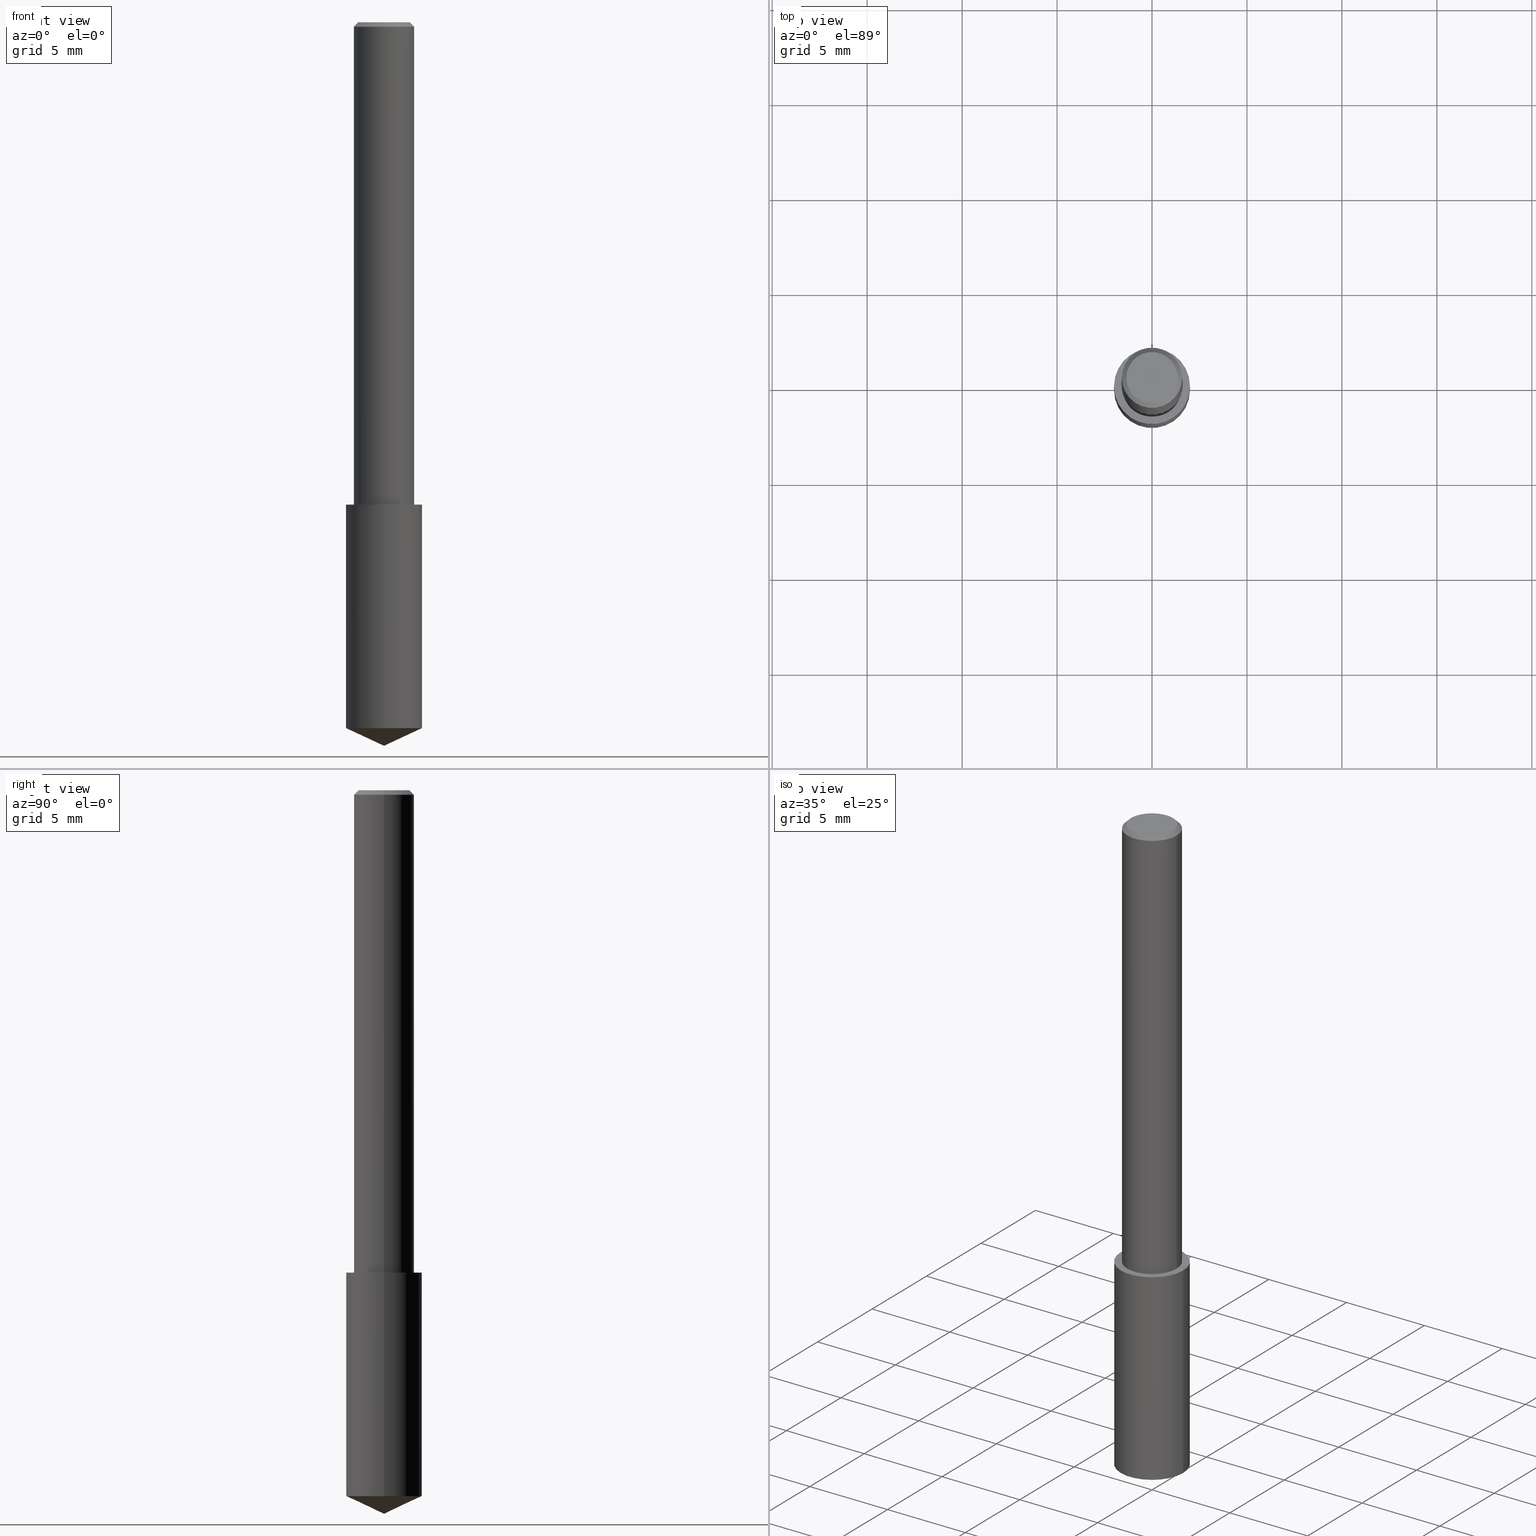
[diagram: canonical four-view strip — front | top / right | iso, engineering-drawing reading convention]
A machine part, canonical four-view strip (front | top / right | iso — engineering-drawing reading convention). The complete STEP part file that produces these views, byte-faithful:
ISO-10303-21;
HEADER;
FILE_DESCRIPTION (( 'STEP AP203' ),
    '1' );
FILE_NAME ('06096.STEP',
    '2024-04-30T18:20:17',
    ( '' ),
    ( '' ),
    'SwSTEP 2.0',
    'SolidWorks 2023',
    '' );
FILE_SCHEMA (( 'CONFIG_CONTROL_DESIGN' ));
ENDSEC;

DATA;
#1 = AXIS2_PLACEMENT_3D ( 'NONE', #338, #98, #74 ) ;
#2 = PERSON_AND_ORGANIZATION_ROLE ( 'design_owner' ) ;
#3 = PRODUCT ( '06096', '06096', '', ( #337 ) ) ;
#4 = PERSON_AND_ORGANIZATION ( #123, #295 ) ;
#5 = LOCAL_TIME ( 14, 20, 17.00000000000000000, #169 ) ;
#6 = EDGE_LOOP ( 'NONE', ( #224, #322, #241, #325 ) ) ;
#7 = VECTOR ( 'NONE', #83, 39.37007874015748854 ) ;
#8 = VERTEX_POINT ( 'NONE', #154 ) ;
#9 = VERTEX_POINT ( 'NONE', #44 ) ;
#10 = ADVANCED_FACE ( 'NONE', ( #247 ), #45, .T. ) ;
#11 = FACE_OUTER_BOUND ( 'NONE', #41, .T. ) ;
#12 = ORIENTED_EDGE ( 'NONE', *, *, #278, .F. ) ;
#13 = EDGE_CURVE ( 'NONE', #220, #223, #297, .T. ) ;
#14 = CARTESIAN_POINT ( 'NONE',  ( -0.07875000000000000056, -3.740692654982671056E-15, -1.000000000000000222 ) ) ;
#15 = LOCAL_TIME ( 14, 20, 17.00000000000000000, #105 ) ;
#16 = DIRECTION ( 'NONE',  ( -2.445468806185136597E-29, 3.491481338843145583E-15, 1.000000000000000000 ) ) ;
#17 = DIRECTION ( 'NONE',  ( 1.000000000000000000, 0.000000000000000000, 0.000000000000000000 ) ) ;
#18 = AXIS2_PLACEMENT_3D ( 'NONE', #248, #155, #335 ) ;
#19 = CARTESIAN_POINT ( 'NONE',  ( 2.292627005798582375E-31, -3.273263755165472650E-17, -0.009375000000000067307 ) ) ;
#20 = CARTESIAN_POINT ( 'NONE',  ( -7.487088864773345706E-50, 1.068957861474247695E-35, 3.061616997868395197E-21 ) ) ;
#21 = CARTESIAN_POINT ( 'NONE',  ( -9.261009624683002666E-28, 1.322226732217803884E-13, 37.87007874015748143 ) ) ;
#22 =( NAMED_UNIT ( * ) SI_UNIT ( $, .STERADIAN. ) SOLID_ANGLE_UNIT ( ) );
#23 = ADVANCED_FACE ( 'NONE', ( #11 ), #137, .T. ) ;
#24 = AXIS2_PLACEMENT_3D ( 'NONE', #138, #290, #17 ) ;
#25 = CARTESIAN_POINT ( 'NONE',  ( 0.000000000000000000, 0.000000000000000000, 0.000000000000000000 ) ) ;
#26 = CARTESIAN_POINT ( 'NONE',  ( 0.06250000000000012490, -3.927916506198539224E-15, -1.000000000000000222 ) ) ;
#27 = AXIS2_PLACEMENT_3D ( 'NONE', #81, #192, #46 ) ;
#28 = APPROVAL_ROLE ( '' ) ;
#29 = CARTESIAN_POINT ( 'NONE',  ( 2.445468806185137438E-29, -3.491481338843146371E-15, -1.000000000000000222 ) ) ;
#30 = DIRECTION ( 'NONE',  ( -1.000000000000000000, 6.982962677686266711E-15, 0.000000000000000000 ) ) ;
#31 = EDGE_CURVE ( 'NONE', #9, #150, #116, .T. ) ;
#32 = APPROVAL_ROLE ( '' ) ;
#33 = DATE_TIME_ROLE ( 'classification_date' ) ;
#34 = CIRCLE ( 'NONE', #260, 0.05312499999999999861 ) ;
#35 = PERSON_AND_ORGANIZATION ( #123, #295 ) ;
#36 = AXIS2_PLACEMENT_3D ( 'NONE', #190, #185, #284 ) ;
#37 = AXIS2_PLACEMENT_3D ( 'NONE', #21, #166, #288 ) ;
#38 = PERSON_AND_ORGANIZATION_ROLE ( 'creator' ) ;
#39 = ORIENTED_EDGE ( 'NONE', *, *, #93, .T. ) ;
#40 = ADVANCED_FACE ( 'NONE', ( #53 ), #161, .F. ) ;
#41 = EDGE_LOOP ( 'NONE', ( #270, #177, #200, #148 ) ) ;
#42 = VERTEX_POINT ( 'NONE', #308 ) ;
#43 = SECURITY_CLASSIFICATION ( '', '', #256 ) ;
#44 = CARTESIAN_POINT ( 'NONE',  ( 0.07875000000000000056, -4.041389649710939323E-15, -1.000000000000000222 ) ) ;
#45 = CONICAL_SURFACE ( 'NONE', #300, 84.42940631927402251, 1.134464013796314452 ) ;
#46 = DIRECTION ( 'NONE',  ( 1.000000000000000000, -6.982962677686268288E-15, 0.000000000000000000 ) ) ;
#47 = DIRECTION ( 'NONE',  ( 0.7071067811865450192, -7.319954787623246579E-15, -0.7071067811865500152 ) ) ;
#48 = CARTESIAN_POINT ( 'NONE',  ( 0.07875000000000000056, -4.041389649710940112E-15, -1.000000000000000222 ) ) ;
#49 = EDGE_CURVE ( 'NONE', #42, #221, #129, .T. ) ;
#50 =( LENGTH_UNIT ( ) NAMED_UNIT ( * ) SI_UNIT ( $, .METRE. ) );
#51 = PLANE ( 'NONE',  #36 ) ;
#52 = PERSON_AND_ORGANIZATION_ROLE ( 'creator' ) ;
#53 = FACE_OUTER_BOUND ( 'NONE', #94, .T. ) ;
#54 = DIRECTION ( 'NONE',  ( 0.9063077870366499367, -4.853149677051380368E-15, 0.4226182617406991082 ) ) ;
#55 = APPROVAL_PERSON_ORGANIZATION ( #259, #65, #84 ) ;
#56 = AXIS2_PLACEMENT_3D ( 'NONE', #339, #312, #212 ) ;
#57 = PERSON_AND_ORGANIZATION ( #123, #295 ) ;
#58 = CARTESIAN_POINT ( 'NONE',  ( -7.487088864773345706E-50, 1.068957861474247695E-35, 3.061616997868395197E-21 ) ) ;
#59 = DATE_AND_TIME ( #144, #126 ) ;
#60 = APPROVAL ( #136, 'UNSPECIFIED' ) ;
#61 = APPROVAL_PERSON_ORGANIZATION ( #191, #172, #32 ) ;
#62 = ORIENTED_EDGE ( 'NONE', *, *, #194, .F. ) ;
#63 = EDGE_CURVE ( 'NONE', #90, #95, #217, .T. ) ;
#64 = ORIENTED_EDGE ( 'NONE', *, *, #153, .T. ) ;
#65 = APPROVAL ( #107, 'UNSPECIFIED' ) ;
#66 = EDGE_LOOP ( 'NONE', ( #219, #39, #323, #121 ) ) ;
#67 = AXIS2_PLACEMENT_3D ( 'NONE', #106, #16, #277 ) ;
#68 = DIRECTION ( 'NONE',  ( -2.445468806185136597E-29, 3.491481338843145583E-15, 1.000000000000000000 ) ) ;
#69 = ORIENTED_EDGE ( 'NONE', *, *, #266, .F. ) ;
#70 = EDGE_CURVE ( 'NONE', #95, #90, #92, .T. ) ;
#71 = AXIS2_PLACEMENT_3D ( 'NONE', #210, #262, #30 ) ;
#72 = ORIENTED_EDGE ( 'NONE', *, *, #143, .T. ) ;
#73 = VECTOR ( 'NONE', #187, 39.37007874015748143 ) ;
#74 = DIRECTION ( 'NONE',  ( -1.000000000000000000, 6.982962677686266711E-15, 0.000000000000000000 ) ) ;
#75 = FACE_OUTER_BOUND ( 'NONE', #6, .T. ) ;
#76 = CARTESIAN_POINT ( 'NONE',  ( 0.06250000000000006939, -4.364351673553921624E-16, 3.047610484872463374E-30 ) ) ;
#77 = ADVANCED_FACE ( 'NONE', ( #226 ), #87, .T. ) ;
#78 = CARTESIAN_POINT ( 'NONE',  ( -0.07875000000000000056, -2.931928934432067570E-15, -1.000000000000000222 ) ) ;
#79 = DATE_TIME_ROLE ( 'creation_date' ) ;
#80 = CARTESIAN_POINT ( 'NONE',  ( 0.07874999999999997280, -5.658917090812145507E-15, -1.463278271920293916 ) ) ;
#81 = CARTESIAN_POINT ( 'NONE',  ( 2.445468806185136877E-29, -3.491481338843145977E-15, -1.000000000000000222 ) ) ;
#82 = CC_DESIGN_APPROVAL ( #172, ( #179 ) ) ;
#83 = DIRECTION ( 'NONE',  ( -0.9063077870366499367, 7.915267918739013053E-15, 0.4226182617406991082 ) ) ;
#84 = APPROVAL_ROLE ( '' ) ;
#85 = APPROVAL_STATUS ( 'not_yet_approved' ) ;
#86 = EDGE_CURVE ( 'NONE', #221, #42, #252, .T. ) ;
#87 = CONICAL_SURFACE ( 'NONE', #1, 0.06250000000000000000, 0.7853981633974447263 ) ;
#88 = ORIENTED_EDGE ( 'NONE', *, *, #135, .T. ) ;
#89 = CC_DESIGN_DATE_AND_TIME_ASSIGNMENT ( #263, #33, ( #43 ) ) ;
#90 = VERTEX_POINT ( 'NONE', #208 ) ;
#91 = ORIENTED_EDGE ( 'NONE', *, *, #63, .T. ) ;
#92 = CIRCLE ( 'NONE', #67, 0.07875000000000000056 ) ;
#93 = EDGE_CURVE ( 'NONE', #220, #221, #225, .T. ) ;
#94 = EDGE_LOOP ( 'NONE', ( #245, #274 ) ) ;
#95 = VERTEX_POINT ( 'NONE', #80 ) ;
#96 = APPROVAL_PERSON_ORGANIZATION ( #57, #60, #28 ) ;
#97 = CARTESIAN_POINT ( 'NONE',  ( -0.06250000000000000000, 4.037025298037369491E-16, -0.009375000000000067307 ) ) ;
#98 = DIRECTION ( 'NONE',  ( 2.445468806185136597E-29, -3.491481338843145583E-15, -1.000000000000000000 ) ) ;
#99 = APPLICATION_CONTEXT ( 'configuration controlled 3d designs of mechanical parts and assemblies' ) ;
#100 = DIRECTION ( 'NONE',  ( -2.445468806185136597E-29, 3.491481338843145583E-15, 1.000000000000000000 ) ) ;
#101 = ADVANCED_FACE ( 'NONE', ( #75 ), #304, .T. ) ;
#102 = DIRECTION ( 'NONE',  ( -2.445468806185136877E-29, 3.491481338843145188E-15, 1.000000000000000000 ) ) ;
#103 = DIRECTION ( 'NONE',  ( 1.000000000000000000, -6.982962677686266711E-15, 4.876176628004948512E-29 ) ) ;
#104 = AXIS2_PLACEMENT_3D ( 'NONE', #29, #140, #258 ) ;
#105 = COORDINATED_UNIVERSAL_TIME_OFFSET ( 5, 0, .BEHIND. ) ;
#106 = CARTESIAN_POINT ( 'NONE',  ( 3.578401368749571322E-29, -5.109008779944352161E-15, -1.463278271920293916 ) ) ;
#107 = APPROVAL_STATUS ( 'not_yet_approved' ) ;
#108 = CLOSED_SHELL ( 'NONE', ( #77, #320, #40, #101, #196, #250 ) ) ;
#109 = LINE ( 'NONE', #211, #275 ) ;
#110 = CARTESIAN_POINT ( 'NONE',  ( 3.668203209277704895E-29, -5.237222008264718177E-15, -1.500000000000000222 ) ) ;
#111 = DIMENSIONAL_EXPONENTS ( 1.000000000000000000, 0.000000000000000000, 0.000000000000000000, 0.000000000000000000, 0.000000000000000000, 0.000000000000000000, 0.000000000000000000 ) ;
#112 = DATE_AND_TIME ( #237, #334 ) ;
#113 = PERSON_AND_ORGANIZATION ( #123, #295 ) ;
#114 = EDGE_CURVE ( 'NONE', #119, #42, #109, .T. ) ;
#115 = VECTOR ( 'NONE', #54, 39.37007874015748854 ) ;
#116 = CIRCLE ( 'NONE', #261, 0.07875000000000000056 ) ;
#117 = CC_DESIGN_DATE_AND_TIME_ASSIGNMENT ( #189, #79, ( #179 ) ) ;
#118 = ORIENTED_EDGE ( 'NONE', *, *, #86, .T. ) ;
#119 = VERTEX_POINT ( 'NONE', #229 ) ;
#120 = ORIENTED_EDGE ( 'NONE', *, *, #156, .F. ) ;
#121 = ORIENTED_EDGE ( 'NONE', *, *, #268, .F. ) ;
#122 = VECTOR ( 'NONE', #186, 39.37007874015748143 ) ;
#123 = PERSON ( 'UNSPECIFIED', 'UNSPECIFIED', 'UNSPECIFIED', ('UNSPECIFIED'), ('UNSPECIFIED'), ('UNSPECIFIED') ) ;
#124 = CARTESIAN_POINT ( 'NONE',  ( -9.261009624683002666E-28, 1.322226732217803884E-13, 37.87007874015748143 ) ) ;
#125 = LINE ( 'NONE', #48, #239 ) ;
#126 = LOCAL_TIME ( 14, 20, 17.00000000000000000, #336 ) ;
#127 = CARTESIAN_POINT ( 'NONE',  ( 2.445468806185136877E-29, -3.491481338843145977E-15, -1.000000000000000222 ) ) ;
#128 = ADVANCED_FACE ( 'NONE', ( #332 ), #51, .F. ) ;
#129 = CIRCLE ( 'NONE', #18, 0.06250000000000000000 ) ;
#130 = DIRECTION ( 'NONE',  ( 1.000000000000000000, -6.982962677686266711E-15, 4.876176775795935793E-29 ) ) ;
#131 = PLANE ( 'NONE',  #56 ) ;
#132 = CARTESIAN_POINT ( 'NONE',  ( 2.445468806185137438E-29, -3.491481338843146371E-15, -1.000000000000000222 ) ) ;
#133 =( CONVERSION_BASED_UNIT ( 'INCH', #257 ) LENGTH_UNIT ( ) NAMED_UNIT ( #111 ) );
#134 = AXIS2_PLACEMENT_3D ( 'NONE', #58, #100, #283 ) ;
#135 = EDGE_CURVE ( 'NONE', #8, #221, #313, .T. ) ;
#136 = APPROVAL_STATUS ( 'not_yet_approved' ) ;
#137 = CYLINDRICAL_SURFACE ( 'NONE', #218, 0.07875000000000000056 ) ;
#138 = CARTESIAN_POINT ( 'NONE',  ( 0.000000000000000000, 0.000000000000000000, 0.000000000000000000 ) ) ;
#139 = AXIS2_PLACEMENT_3D ( 'NONE', #25, #251, #130 ) ;
#140 = DIRECTION ( 'NONE',  ( -2.445468806185136597E-29, 3.491481338843145583E-15, 1.000000000000000000 ) ) ;
#141 = PERSON_AND_ORGANIZATION_ROLE ( 'design_supplier' ) ;
#142 = CARTESIAN_POINT ( 'NONE',  ( -0.06250000000000000000, -1.318017778347336672E-15, -0.009375000000000067307 ) ) ;
#143 = EDGE_CURVE ( 'NONE', #150, #9, #321, .T. ) ;
#144 = CALENDAR_DATE ( 2024, 30, 4 ) ;
#145 = VECTOR ( 'NONE', #158, 39.37007874015748143 ) ;
#146 = VERTEX_POINT ( 'NONE', #279 ) ;
#147 = CALENDAR_DATE ( 2024, 30, 4 ) ;
#148 = ORIENTED_EDGE ( 'NONE', *, *, #153, .F. ) ;
#149 = ORIENTED_EDGE ( 'NONE', *, *, #293, .T. ) ;
#150 = VERTEX_POINT ( 'NONE', #14 ) ;
#151 = CIRCLE ( 'NONE', #134, 0.05312499999999999861 ) ;
#152 = ORIENTED_EDGE ( 'NONE', *, *, #266, .T. ) ;
#153 = EDGE_CURVE ( 'NONE', #95, #9, #125, .T. ) ;
#154 = CARTESIAN_POINT ( 'NONE',  ( -0.05312499999999999861, 3.873362110279099094E-16, 3.061616995216862494E-21 ) ) ;
#155 = DIRECTION ( 'NONE',  ( -2.445468806185136597E-29, 3.491481338843145583E-15, 1.000000000000000000 ) ) ;
#156 = EDGE_CURVE ( 'NONE', #90, #150, #205, .T. ) ;
#157 = CC_DESIGN_PERSON_AND_ORGANIZATION_ASSIGNMENT ( #291, #170, ( #43 ) ) ;
#158 = DIRECTION ( 'NONE',  ( -0.7071067811865450192, 2.468850131082230634E-15, -0.7071067811865500152 ) ) ;
#159 = DIRECTION ( 'NONE',  ( 1.000000000000000000, -6.982962677686266711E-15, 4.876176775795935793E-29 ) ) ;
#160 = DIRECTION ( 'NONE',  ( 1.000000000000000000, -6.982962677686266711E-15, 0.000000000000000000 ) ) ;
#161 = PLANE ( 'NONE',  #292 ) ;
#162 =( NAMED_UNIT ( * ) PLANE_ANGLE_UNIT ( ) SI_UNIT ( $, .RADIAN. ) );
#163 = DIRECTION ( 'NONE',  ( -2.445468806185136597E-29, 3.491481338843145583E-15, 1.000000000000000000 ) ) ;
#164 = CARTESIAN_POINT ( 'NONE',  ( 2.445468806185137438E-29, -3.491481338843146371E-15, -1.000000000000000222 ) ) ;
#165 = PRODUCT_DEFINITION_FORMATION_WITH_SPECIFIED_SOURCE ( 'ANY', '', #3, .NOT_KNOWN. ) ;
#166 = DIRECTION ( 'NONE',  ( -2.445468806185136597E-29, 3.491481338843145583E-15, 1.000000000000000000 ) ) ;
#167 = CYLINDRICAL_SURFACE ( 'NONE', #215, 0.07875000000000000056 ) ;
#168 = ADVANCED_FACE ( 'NONE', ( #254 ), #222, .T. ) ;
#169 = COORDINATED_UNIVERSAL_TIME_OFFSET ( 5, 0, .BEHIND. ) ;
#170 = PERSON_AND_ORGANIZATION_ROLE ( 'classification_officer' ) ;
#171 = EDGE_LOOP ( 'NONE', ( #197, #303, #273 ) ) ;
#172 = APPROVAL ( #85, 'UNSPECIFIED' ) ;
#173 = LOCAL_TIME ( 14, 20, 17.00000000000000000, #235 ) ;
#174 = DIRECTION ( 'NONE',  ( -2.445468806185136597E-29, 3.491481338843145583E-15, 1.000000000000000000 ) ) ;
#175 = MANIFOLD_SOLID_BREP ( 'Body-Move/Copy2[1]', #246 ) ;
#176 = APPROVAL_DATE_TIME ( #319, #60 ) ;
#177 = ORIENTED_EDGE ( 'NONE', *, *, #156, .T. ) ;
#178 = EDGE_CURVE ( 'NONE', #223, #220, #188, .T. ) ;
#179 = PRODUCT_DEFINITION ( 'UNKNOWN', '', #165, #324 ) ;
#180 = DIRECTION ( 'NONE',  ( 1.000000000000000000, -6.982962677686264344E-15, 0.000000000000000000 ) ) ;
#181 = CONICAL_SURFACE ( 'NONE', #71, 0.06250000000000000000, 0.7853981633974447263 ) ;
#182 = EDGE_LOOP ( 'NONE', ( #152, #327 ) ) ;
#183 = EDGE_LOOP ( 'NONE', ( #276, #69, #88, #118 ) ) ;
#184 = DIRECTION ( 'NONE',  ( 1.000000000000000000, -6.982962677686265922E-15, 4.876176775795935793E-29 ) ) ;
#185 = DIRECTION ( 'NONE',  ( 2.438088387897960049E-29, -3.491481338843145188E-15, -1.000000000000000000 ) ) ;
#186 = DIRECTION ( 'NONE',  ( -2.445468806185136877E-29, 3.491481338843145188E-15, 1.000000000000000000 ) ) ;
#187 = DIRECTION ( 'NONE',  ( -2.445468806185136877E-29, 3.491481338843145188E-15, 1.000000000000000000 ) ) ;
#188 = CIRCLE ( 'NONE', #104, 0.06250000000000012490 ) ;
#189 = DATE_AND_TIME ( #287, #15 ) ;
#190 = CARTESIAN_POINT ( 'NONE',  ( 3.656668335129243185E-29, -1.756974676199169330E-15, -1.000000000000000222 ) ) ;
#191 = PERSON_AND_ORGANIZATION ( #123, #295 ) ;
#192 = DIRECTION ( 'NONE',  ( -2.445468806185136597E-29, 3.491481338843145583E-15, 1.000000000000000000 ) ) ;
#193 = COORDINATED_UNIVERSAL_TIME_OFFSET ( 5, 0, .BEHIND. ) ;
#194 = EDGE_CURVE ( 'NONE', #119, #8, #151, .T. ) ;
#195 = ORIENTED_EDGE ( 'NONE', *, *, #31, .T. ) ;
#196 = ADVANCED_FACE ( 'NONE', ( #214 ), #181, .T. ) ;
#197 = ORIENTED_EDGE ( 'NONE', *, *, #293, .F. ) ;
#198 = AXIS2_PLACEMENT_3D ( 'NONE', #19, #202, #160 ) ;
#199 = DIRECTION ( 'NONE',  ( 1.000000000000000000, -6.982962677686266711E-15, 0.000000000000000000 ) ) ;
#200 = ORIENTED_EDGE ( 'NONE', *, *, #31, .F. ) ;
#201 = EDGE_LOOP ( 'NONE', ( #195, #72 ) ) ;
#202 = DIRECTION ( 'NONE',  ( -2.445468806185136597E-29, 3.491481338843145583E-15, 1.000000000000000000 ) ) ;
#203 = DIRECTION ( 'NONE',  ( 1.000000000000000000, -6.982962677686268288E-15, 0.000000000000000000 ) ) ;
#204 = CARTESIAN_POINT ( 'NONE',  ( -0.06250000000000012490, -1.318017778347335489E-15, -1.000000000000000222 ) ) ;
#205 = LINE ( 'NONE', #78, #73 ) ;
#206 =( GEOMETRIC_REPRESENTATION_CONTEXT ( 3 ) GLOBAL_UNCERTAINTY_ASSIGNED_CONTEXT ( ( #267 ) ) GLOBAL_UNIT_ASSIGNED_CONTEXT ( ( #133, #162, #22 ) ) REPRESENTATION_CONTEXT ( 'NONE', 'WORKASPACE' ) );
#207 = FACE_OUTER_BOUND ( 'NONE', #66, .T. ) ;
#208 = CARTESIAN_POINT ( 'NONE',  ( -0.07874999999999997280, -4.549456375533274148E-15, -1.463278271920293916 ) ) ;
#209 = VECTOR ( 'NONE', #306, 39.37007874015748143 ) ;
#210 = CARTESIAN_POINT ( 'NONE',  ( 2.292627005798582375E-31, -3.273263755165472650E-17, -0.009375000000000067307 ) ) ;
#211 = CARTESIAN_POINT ( 'NONE',  ( 0.06250000000000000000, -4.615137624123754923E-16, -0.009375000000000067307 ) ) ;
#212 = DIRECTION ( 'NONE',  ( -1.000000000000000000, 6.982962677686265922E-15, -4.876176775795935793E-29 ) ) ;
#213 = CC_DESIGN_PERSON_AND_ORGANIZATION_ASSIGNMENT ( #113, #141, ( #165 ) ) ;
#214 = FACE_OUTER_BOUND ( 'NONE', #183, .T. ) ;
#215 = AXIS2_PLACEMENT_3D ( 'NONE', #164, #234, #253 ) ;
#216 = CC_DESIGN_SECURITY_CLASSIFICATION ( #43, ( #165 ) ) ;
#217 = CIRCLE ( 'NONE', #233, 0.07875000000000000056 ) ;
#218 = AXIS2_PLACEMENT_3D ( 'NONE', #132, #163, #255 ) ;
#219 = ORIENTED_EDGE ( 'NONE', *, *, #178, .T. ) ;
#220 = VERTEX_POINT ( 'NONE', #204 ) ;
#221 = VERTEX_POINT ( 'NONE', #142 ) ;
#222 = CONICAL_SURFACE ( 'NONE', #37, 84.42940631927402251, 1.134464013796314452 ) ;
#223 = VERTEX_POINT ( 'NONE', #26 ) ;
#224 = ORIENTED_EDGE ( 'NONE', *, *, #93, .F. ) ;
#225 = LINE ( 'NONE', #310, #209 ) ;
#226 = FACE_OUTER_BOUND ( 'NONE', #298, .T. ) ;
#227 = APPLICATION_PROTOCOL_DEFINITION ( 'international standard', 'config_control_design', 1994, #99 ) ;
#228 = CARTESIAN_POINT ( 'NONE',  ( 0.000000000000000000, 0.000000000000000000, 0.000000000000000000 ) ) ;
#229 = CARTESIAN_POINT ( 'NONE',  ( 0.05312499999999999861, -4.129888592719939842E-16, 3.061617000609493422E-21 ) ) ;
#230 = DIRECTION ( 'NONE',  ( -2.445468806185136597E-29, 3.491481338843145583E-15, 1.000000000000000000 ) ) ;
#231 = CARTESIAN_POINT ( 'NONE',  ( 2.445468806185137438E-29, -3.491481338843146371E-15, -1.000000000000000222 ) ) ;
#232 = DIRECTION ( 'NONE',  ( 1.000000000000000000, -6.982962677686261977E-15, 0.000000000000000000 ) ) ;
#233 = AXIS2_PLACEMENT_3D ( 'NONE', #328, #282, #232 ) ;
#234 = DIRECTION ( 'NONE',  ( -2.445468806185136597E-29, 3.491481338843145583E-15, 1.000000000000000000 ) ) ;
#235 = COORDINATED_UNIVERSAL_TIME_OFFSET ( 5, 0, .BEHIND. ) ;
#236 = FACE_OUTER_BOUND ( 'NONE', #182, .T. ) ;
#237 = CALENDAR_DATE ( 2024, 30, 4 ) ;
#238 = SHAPE_DEFINITION_REPRESENTATION ( #296, #269 ) ;
#239 = VECTOR ( 'NONE', #102, 39.37007874015748143 ) ;
#240 = ADVANCED_FACE ( 'NONE', ( #316 ), #167, .T. ) ;
#241 = ORIENTED_EDGE ( 'NONE', *, *, #268, .T. ) ;
#242 = ORIENTED_EDGE ( 'NONE', *, *, #49, .T. ) ;
#243 = ORIENTED_EDGE ( 'NONE', *, *, #70, .F. ) ;
#244 = CC_DESIGN_APPROVAL ( #60, ( #165 ) ) ;
#245 = ORIENTED_EDGE ( 'NONE', *, *, #178, .F. ) ;
#246 = CLOSED_SHELL ( 'NONE', ( #23, #10, #168, #240, #128 ) ) ;
#247 = FACE_OUTER_BOUND ( 'NONE', #326, .T. ) ;
#248 = CARTESIAN_POINT ( 'NONE',  ( 2.292627005798582375E-31, -3.273263755165472650E-17, -0.009375000000000067307 ) ) ;
#249 = DIRECTION ( 'NONE',  ( -2.438088387897960049E-29, 3.491481338843145188E-15, 1.000000000000000000 ) ) ;
#250 = ADVANCED_FACE ( 'NONE', ( #236 ), #131, .F. ) ;
#251 = DIRECTION ( 'NONE',  ( -2.445468806185136597E-29, 3.491481338843145583E-15, 1.000000000000000000 ) ) ;
#252 = CIRCLE ( 'NONE', #198, 0.06250000000000000000 ) ;
#253 = DIRECTION ( 'NONE',  ( 1.000000000000000000, -6.982962677686268288E-15, 0.000000000000000000 ) ) ;
#254 = FACE_OUTER_BOUND ( 'NONE', #171, .T. ) ;
#255 = DIRECTION ( 'NONE',  ( 1.000000000000000000, -6.982962677686268288E-15, 0.000000000000000000 ) ) ;
#256 = SECURITY_CLASSIFICATION_LEVEL ( 'unclassified' ) ;
#257 = LENGTH_MEASURE_WITH_UNIT ( LENGTH_MEASURE( 0.02539999999999999897 ), #50 );
#258 = DIRECTION ( 'NONE',  ( 1.000000000000000000, -6.982962677686264344E-15, 0.000000000000000000 ) ) ;
#259 = PERSON_AND_ORGANIZATION ( #123, #295 ) ;
#260 = AXIS2_PLACEMENT_3D ( 'NONE', #20, #230, #103 ) ;
#261 = AXIS2_PLACEMENT_3D ( 'NONE', #127, #330, #203 ) ;
#262 = DIRECTION ( 'NONE',  ( 2.445468806185136597E-29, -3.491481338843145583E-15, -1.000000000000000000 ) ) ;
#263 = DATE_AND_TIME ( #317, #5 ) ;
#264 = AXIS2_PLACEMENT_3D ( 'NONE', #228, #309, #159 ) ;
#265 = APPROVAL_DATE_TIME ( #112, #172 ) ;
#266 = EDGE_CURVE ( 'NONE', #8, #119, #34, .T. ) ;
#267 = UNCERTAINTY_MEASURE_WITH_UNIT (LENGTH_MEASURE( 1.000000000000000082E-05 ), #133, 'distance_accuracy_value', 'NONE');
#268 = EDGE_CURVE ( 'NONE', #223, #42, #307, .T. ) ;
#269 = ADVANCED_BREP_SHAPE_REPRESENTATION ( '06096', ( #175, #280, #24 ), #206 ) ;
#270 = ORIENTED_EDGE ( 'NONE', *, *, #70, .T. ) ;
#271 = ORIENTED_EDGE ( 'NONE', *, *, #135, .F. ) ;
#272 = APPLICATION_CONTEXT ( 'configuration controlled 3d designs of mechanical parts and assemblies' ) ;
#273 = ORIENTED_EDGE ( 'NONE', *, *, #63, .F. ) ;
#274 = ORIENTED_EDGE ( 'NONE', *, *, #13, .F. ) ;
#275 = VECTOR ( 'NONE', #47, 39.37007874015748143 ) ;
#276 = ORIENTED_EDGE ( 'NONE', *, *, #114, .F. ) ;
#277 = DIRECTION ( 'NONE',  ( 1.000000000000000000, -6.982962677686261977E-15, 0.000000000000000000 ) ) ;
#278 = EDGE_CURVE ( 'NONE', #146, #95, #333, .T. ) ;
#279 = CARTESIAN_POINT ( 'NONE',  ( 3.668203209277704895E-29, -5.237222008264718177E-15, -1.500000000000000222 ) ) ;
#280 = MANIFOLD_SOLID_BREP ( 'Body-Move/Copy2[2]', #108 ) ;
#281 = CARTESIAN_POINT ( 'NONE',  ( 3.668203209277704895E-29, -5.237222008264718177E-15, -1.500000000000000222 ) ) ;
#282 = DIRECTION ( 'NONE',  ( -2.445468806185136597E-29, 3.491481338843145583E-15, 1.000000000000000000 ) ) ;
#283 = DIRECTION ( 'NONE',  ( 1.000000000000000000, -6.982962677686266711E-15, 4.876176628004948512E-29 ) ) ;
#284 = DIRECTION ( 'NONE',  ( -1.000000000000000000, 6.982962677686265922E-15, -4.876176775795935793E-29 ) ) ;
#285 = CC_DESIGN_PERSON_AND_ORGANIZATION_ASSIGNMENT ( #286, #2, ( #3 ) ) ;
#286 = PERSON_AND_ORGANIZATION ( #123, #295 ) ;
#287 = CALENDAR_DATE ( 2024, 30, 4 ) ;
#288 = DIRECTION ( 'NONE',  ( 1.000000000000000000, -6.982962677686266711E-15, 0.000000000000000000 ) ) ;
#289 = CC_DESIGN_APPROVAL ( #65, ( #43 ) ) ;
#290 = DIRECTION ( 'NONE',  ( 0.000000000000000000, 0.000000000000000000, 1.000000000000000000 ) ) ;
#291 = PERSON_AND_ORGANIZATION ( #123, #295 ) ;
#292 = AXIS2_PLACEMENT_3D ( 'NONE', #231, #249, #184 ) ;
#293 = EDGE_CURVE ( 'NONE', #146, #90, #315, .T. ) ;
#294 = ORIENTED_EDGE ( 'NONE', *, *, #114, .T. ) ;
#295 = ORGANIZATION ( 'UNSPECIFIED', 'UNSPECIFIED', '' ) ;
#296 = PRODUCT_DEFINITION_SHAPE ( 'NONE', 'NONE',  #179 ) ;
#297 = CIRCLE ( 'NONE', #311, 0.06250000000000012490 ) ;
#298 = EDGE_LOOP ( 'NONE', ( #62, #294, #242, #271 ) ) ;
#299 = EDGE_LOOP ( 'NONE', ( #120, #91, #64, #302 ) ) ;
#300 = AXIS2_PLACEMENT_3D ( 'NONE', #124, #174, #199 ) ;
#301 = CARTESIAN_POINT ( 'NONE',  ( 2.445468806185137438E-29, -3.491481338843146371E-15, -1.000000000000000222 ) ) ;
#302 = ORIENTED_EDGE ( 'NONE', *, *, #143, .F. ) ;
#303 = ORIENTED_EDGE ( 'NONE', *, *, #278, .T. ) ;
#304 = CYLINDRICAL_SURFACE ( 'NONE', #139, 0.06250000000000006939 ) ;
#305 = PRODUCT_RELATED_PRODUCT_CATEGORY ( 'detail', '', ( #3 ) ) ;
#306 = DIRECTION ( 'NONE',  ( -2.445468806185136877E-29, 3.491481338843145188E-15, 1.000000000000000000 ) ) ;
#307 = LINE ( 'NONE', #76, #122 ) ;
#308 = CARTESIAN_POINT ( 'NONE',  ( 0.06250000000000000000, -4.691678049070464390E-16, -0.009375000000000067307 ) ) ;
#309 = DIRECTION ( 'NONE',  ( -2.445468806185136597E-29, 3.491481338843145583E-15, 1.000000000000000000 ) ) ;
#310 = CARTESIAN_POINT ( 'NONE',  ( -0.06250000000000006939, 4.440892098500631092E-16, -3.074334431409319267E-30 ) ) ;
#311 = AXIS2_PLACEMENT_3D ( 'NONE', #301, #68, #180 ) ;
#312 = DIRECTION ( 'NONE',  ( 2.438088387897960049E-29, -3.491481338843145188E-15, -1.000000000000000000 ) ) ;
#313 = LINE ( 'NONE', #97, #145 ) ;
#314 = APPROVAL_DATE_TIME ( #59, #65 ) ;
#315 = LINE ( 'NONE', #281, #7 ) ;
#316 = FACE_OUTER_BOUND ( 'NONE', #299, .T. ) ;
#317 = CALENDAR_DATE ( 2024, 30, 4 ) ;
#318 = CC_DESIGN_PERSON_AND_ORGANIZATION_ASSIGNMENT ( #35, #52, ( #179 ) ) ;
#319 = DATE_AND_TIME ( #147, #173 ) ;
#320 = ADVANCED_FACE ( 'NONE', ( #207 ), #340, .T. ) ;
#321 = CIRCLE ( 'NONE', #27, 0.07875000000000000056 ) ;
#322 = ORIENTED_EDGE ( 'NONE', *, *, #13, .T. ) ;
#323 = ORIENTED_EDGE ( 'NONE', *, *, #49, .F. ) ;
#324 = DESIGN_CONTEXT ( 'detailed design', #99, 'design' ) ;
#325 = ORIENTED_EDGE ( 'NONE', *, *, #86, .F. ) ;
#326 = EDGE_LOOP ( 'NONE', ( #12, #149, #243 ) ) ;
#327 = ORIENTED_EDGE ( 'NONE', *, *, #194, .T. ) ;
#328 = CARTESIAN_POINT ( 'NONE',  ( 3.578401368749571322E-29, -5.109008779944352161E-15, -1.463278271920293916 ) ) ;
#329 = CC_DESIGN_PERSON_AND_ORGANIZATION_ASSIGNMENT ( #4, #38, ( #165 ) ) ;
#330 = DIRECTION ( 'NONE',  ( -2.445468806185136597E-29, 3.491481338843145583E-15, 1.000000000000000000 ) ) ;
#331 = APPLICATION_PROTOCOL_DEFINITION ( 'international standard', 'config_control_design', 1994, #272 ) ;
#332 = FACE_OUTER_BOUND ( 'NONE', #201, .T. ) ;
#333 = LINE ( 'NONE', #110, #115 ) ;
#334 = LOCAL_TIME ( 14, 20, 17.00000000000000000, #193 ) ;
#335 = DIRECTION ( 'NONE',  ( 1.000000000000000000, -6.982962677686266711E-15, 0.000000000000000000 ) ) ;
#336 = COORDINATED_UNIVERSAL_TIME_OFFSET ( 5, 0, .BEHIND. ) ;
#337 = MECHANICAL_CONTEXT ( 'NONE', #272, 'mechanical' ) ;
#338 = CARTESIAN_POINT ( 'NONE',  ( 2.292627005798582375E-31, -3.273263755165472650E-17, -0.009375000000000067307 ) ) ;
#339 = CARTESIAN_POINT ( 'NONE',  ( -3.743544432386672853E-50, 5.344789307371238476E-36, 1.530808498934197599E-21 ) ) ;
#340 = CYLINDRICAL_SURFACE ( 'NONE', #264, 0.06250000000000006939 ) ;
ENDSEC;
END-ISO-10303-21;
